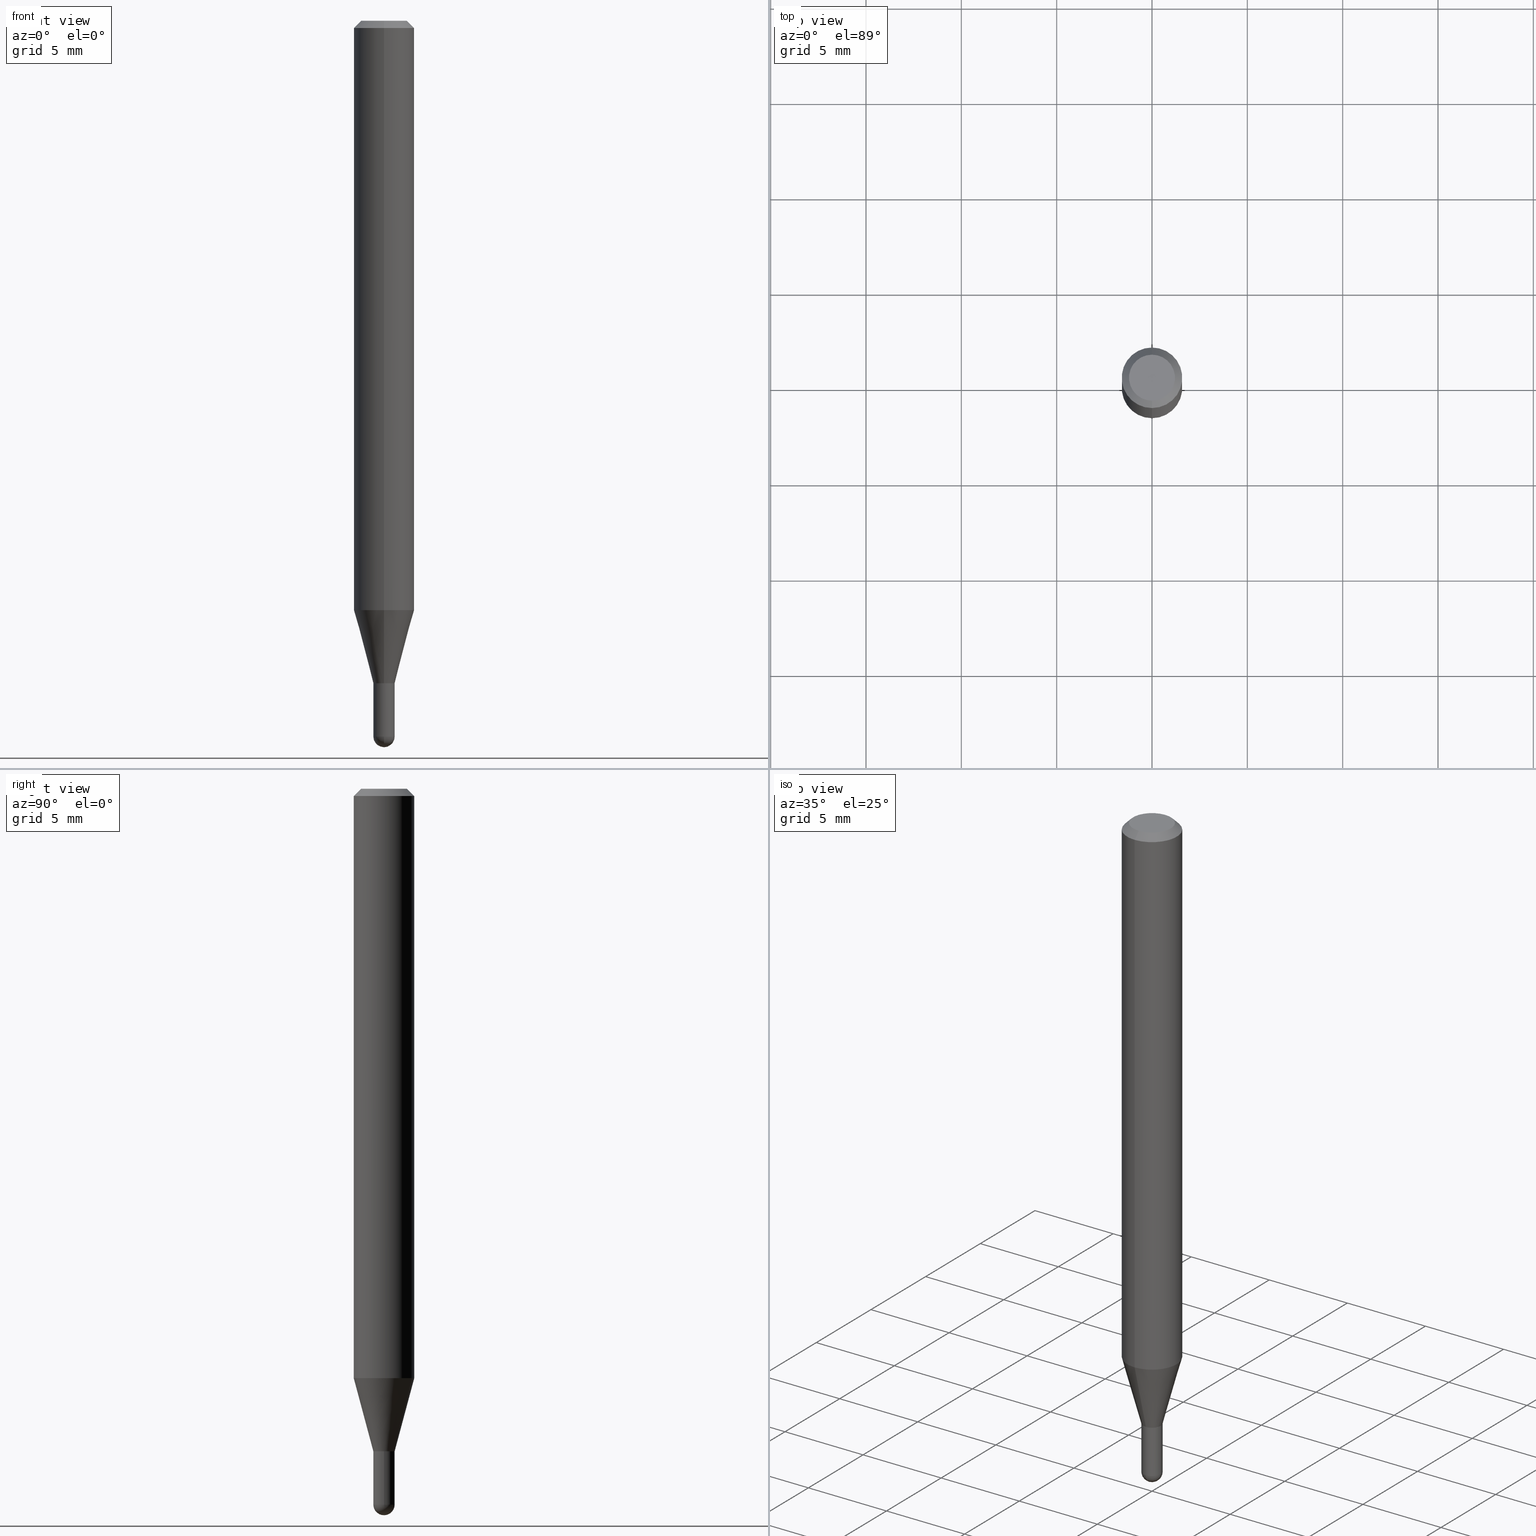
[diagram: canonical four-view strip — front | top / right | iso, engineering-drawing reading convention]
A machine part, canonical four-view strip (front | top / right | iso — engineering-drawing reading convention). The complete STEP part file that produces these views, byte-faithful:
ISO-10303-21;
HEADER;
FILE_DESCRIPTION (( 'STEP AP203' ),
    '1' );
FILE_NAME ('04422.STEP',
    '2024-03-08T19:22:46',
    ( '' ),
    ( '' ),
    'SwSTEP 2.0',
    'SolidWorks 2023',
    '' );
FILE_SCHEMA (( 'CONFIG_CONTROL_DESIGN' ));
ENDSEC;

DATA;
#1 = APPROVAL_PERSON_ORGANIZATION ( #148, #118, #382 ) ;
#2 = ORIENTED_EDGE ( 'NONE', *, *, #417, .T. ) ;
#3 = CARTESIAN_POINT ( 'NONE',  ( 3.614402895541633401E-29, -5.160409418810170442E-15, -1.478000000000000425 ) ) ;
#4 = LINE ( 'NONE', #162, #342 ) ;
#5 = DIRECTION ( 'NONE',  ( 1.000000000000000000, -6.982962677686245411E-15, 0.000000000000000000 ) ) ;
#6 = EDGE_CURVE ( 'NONE', #166, #127, #51, .T. ) ;
#7 = DIRECTION ( 'NONE',  ( -2.445468129083076640E-29, 3.491482308491833698E-15, 1.000000000000000000 ) ) ;
#8 = FACE_OUTER_BOUND ( 'NONE', #392, .T. ) ;
#9 = CONICAL_SURFACE ( 'NONE', #281, 0.02199999999999964831, 0.2617993877991576235 ) ;
#10 = VERTEX_POINT ( 'NONE', #451 ) ;
#11 = VERTEX_POINT ( 'NONE', #209 ) ;
#12 = ORIENTED_EDGE ( 'NONE', *, *, #270, .T. ) ;
#13 =( LENGTH_UNIT ( ) NAMED_UNIT ( * ) SI_UNIT ( $, .METRE. ) );
#14 = EDGE_CURVE ( 'NONE', #238, #482, #279, .T. ) ;
#15 = APPLICATION_CONTEXT ( 'configuration controlled 3d designs of mechanical parts and assemblies' ) ;
#16 = CARTESIAN_POINT ( 'NONE',  ( 3.002043058586727691E-16, 0.02199999999999487088, -1.368000000000000105 ) ) ;
#17 = LOCAL_TIME ( 14, 22, 46.00000000000000000, #262 ) ;
#18 = PLANE ( 'NONE',  #345 ) ;
#19 = EDGE_CURVE ( 'NONE', #183, #193, #4, .T. ) ;
#20 = PLANE ( 'NONE',  #495 ) ;
#21 = FACE_OUTER_BOUND ( 'NONE', #147, .T. ) ;
#22 = DIRECTION ( 'NONE',  ( -6.982962677686266711E-15, -1.000000000000000000, 0.000000000000000000 ) ) ;
#23 = DATE_AND_TIME ( #334, #330 ) ;
#24 = CIRCLE ( 'NONE', #320, 0.06250000000000000000 ) ;
#25 = AXIS2_PLACEMENT_3D ( 'NONE', #184, #416, #498 ) ;
#26 = DATE_AND_TIME ( #300, #321 ) ;
#27 = VERTEX_POINT ( 'NONE', #317 ) ;
#28 = COORDINATED_UNIVERSAL_TIME_OFFSET ( 5, 0, .BEHIND. ) ;
#29 = CARTESIAN_POINT ( 'NONE',  ( 0.000000000000000000, 0.000000000000000000, 0.000000000000000000 ) ) ;
#30 = ORIENTED_EDGE ( 'NONE', *, *, #178, .F. ) ;
#31 = AXIS2_PLACEMENT_3D ( 'NONE', #243, #433, #44 ) ;
#32 = CIRCLE ( 'NONE', #335, 0.02199999999999996403 ) ;
#33 = FACE_OUTER_BOUND ( 'NONE', #506, .T. ) ;
#34 = EDGE_CURVE ( 'NONE', #288, #238, #476, .T. ) ;
#35 = VERTEX_POINT ( 'NONE', #280 ) ;
#36 = LINE ( 'NONE', #201, #155 ) ;
#37 = ORIENTED_EDGE ( 'NONE', *, *, #496, .T. ) ;
#38 = EDGE_CURVE ( 'NONE', #323, #432, #480, .T. ) ;
#39 = DIRECTION ( 'NONE',  ( -6.982962677686265133E-15, -1.000000000000000000, 3.491482308491834092E-15 ) ) ;
#40 = VERTEX_POINT ( 'NONE', #444 ) ;
#41 = CIRCLE ( 'NONE', #289, 0.06250000000000000000 ) ;
#42 = CARTESIAN_POINT ( 'NONE',  ( 2.975772642691505504E-29, -4.248617028571555662E-15, -1.216851942293464051 ) ) ;
#43 = ORIENTED_EDGE ( 'NONE', *, *, #316, .T. ) ;
#44 = DIRECTION ( 'NONE',  ( 6.982962677686265922E-15, 1.000000000000000000, -3.483106191921935554E-15 ) ) ;
#45 = ORIENTED_EDGE ( 'NONE', *, *, #297, .F. ) ;
#46 = DIRECTION ( 'NONE',  ( -2.445468806185136597E-29, 3.491481338843145583E-15, 1.000000000000000000 ) ) ;
#47 = DIRECTION ( 'NONE',  ( -2.445468806185136597E-29, 3.491481338843145583E-15, 1.000000000000000000 ) ) ;
#48 = DIRECTION ( 'NONE',  ( -1.000000000000000000, 6.982962677686265922E-15, -4.876176775795935793E-29 ) ) ;
#49 = EDGE_LOOP ( 'NONE', ( #472, #509, #500, #314 ) ) ;
#50 = CARTESIAN_POINT ( 'NONE',  ( 3.612521529705438074E-29, -5.163103641768293997E-15, -1.478000000000000203 ) ) ;
#51 = LINE ( 'NONE', #292, #83 ) ;
#52 = DIRECTION ( 'NONE',  ( -6.982962677686265133E-15, -1.000000000000000000, 0.000000000000000000 ) ) ;
#53 = DIRECTION ( 'NONE',  ( -2.445468129083076640E-29, 3.491482308491833698E-15, 1.000000000000000000 ) ) ;
#54 = CIRCLE ( 'NONE', #205, 0.02199999999999999872 ) ;
#55 = DIRECTION ( 'NONE',  ( -6.982962677686265922E-15, -1.000000000000000000, 3.491482308491833304E-15 ) ) ;
#56 = LOCAL_TIME ( 14, 22, 46.00000000000000000, #100 ) ;
#57 = CARTESIAN_POINT ( 'NONE',  ( -1.536251789090624606E-16, -0.02200000000000449513, -1.367500000000000160 ) ) ;
#58 = DIRECTION ( 'NONE',  ( -2.445468129083076640E-29, 3.491482308491833698E-15, 1.000000000000000000 ) ) ;
#59 = APPROVAL_DATE_TIME ( #259, #454 ) ;
#60 = PRODUCT_RELATED_PRODUCT_CATEGORY ( 'detail', '', ( #158 ) ) ;
#61 = PERSON_AND_ORGANIZATION_ROLE ( 'creator' ) ;
#62 = AXIS2_PLACEMENT_3D ( 'NONE', #229, #190, #144 ) ;
#63 = CC_DESIGN_APPROVAL ( #454, ( #125 ) ) ;
#64 = EDGE_CURVE ( 'NONE', #323, #40, #354, .T. ) ;
#65 = PERSON_AND_ORGANIZATION ( #421, #264 ) ;
#66 = CARTESIAN_POINT ( 'NONE',  ( 3.612521529705438074E-29, -5.163103641768293997E-15, -1.478000000000000203 ) ) ;
#67 = EDGE_LOOP ( 'NONE', ( #325, #195, #277, #30 ) ) ;
#68 = DIRECTION ( 'NONE',  ( 4.937700262164548042E-15, 0.7071067811865451302, -0.7071067811865499042 ) ) ;
#69 = VERTEX_POINT ( 'NONE', #411 ) ;
#70 = CARTESIAN_POINT ( 'NONE',  ( 3.668202193624631670E-31, -5.237223462737773572E-17, -0.01500000000000006710 ) ) ;
#71 = ORIENTED_EDGE ( 'NONE', *, *, #34, .F. ) ;
#72 = DIRECTION ( 'NONE',  ( -6.982962677686265922E-15, -1.000000000000000000, 4.370956789862821150E-15 ) ) ;
#73 = ORIENTED_EDGE ( 'NONE', *, *, #368, .T. ) ;
#74 = CARTESIAN_POINT ( 'NONE',  ( 3.345401326861266963E-29, -4.776346471537423880E-15, -1.368000000000000105 ) ) ;
#75 = EDGE_LOOP ( 'NONE', ( #152, #134, #327, #441, #249 ) ) ;
#76 = LINE ( 'NONE', #475, #428 ) ;
#77 = ORIENTED_EDGE ( 'NONE', *, *, #182, .F. ) ;
#78 = CYLINDRICAL_SURFACE ( 'NONE', #301, 0.02199999999999964831 ) ;
#79 = CARTESIAN_POINT ( 'NONE',  ( 3.614402895541633401E-29, -5.160409418810170442E-15, -1.478000000000000425 ) ) ;
#80 = CARTESIAN_POINT ( 'NONE',  ( 3.345400400585649103E-29, -4.776347798016828139E-15, -1.368000000000000105 ) ) ;
#81 = ORIENTED_EDGE ( 'NONE', *, *, #419, .T. ) ;
#82 = SPHERICAL_SURFACE ( 'NONE', #85, 0.02199999999999996403 ) ;
#83 = VECTOR ( 'NONE', #363, 39.37007874015748854 ) ;
#84 = CIRCLE ( 'NONE', #247, 0.06250000000000000000 ) ;
#85 = AXIS2_PLACEMENT_3D ( 'NONE', #50, #208, #286 ) ;
#86 = PRODUCT_DEFINITION ( 'UNKNOWN', '', #290, #88 ) ;
#87 = EDGE_LOOP ( 'NONE', ( #202, #437, #131, #398 ) ) ;
#88 = DESIGN_CONTEXT ( 'detailed design', #15, 'design' ) ;
#89 = CARTESIAN_POINT ( 'NONE',  ( 4.440892098500921985E-16, 0.06249999999999573258, -1.216851942293464273 ) ) ;
#90 = FACE_OUTER_BOUND ( 'NONE', #75, .T. ) ;
#91 = DIRECTION ( 'NONE',  ( -6.982962677686265133E-15, -1.000000000000000000, 0.000000000000000000 ) ) ;
#92 = ADVANCED_FACE ( 'NONE', ( #138 ), #478, .T. ) ;
#93 = CARTESIAN_POINT ( 'NONE',  ( 1.536251789091312887E-16, 0.02199999999999522129, -1.368000000000000105 ) ) ;
#94 = AXIS2_PLACEMENT_3D ( 'NONE', #415, #58, #490 ) ;
#95 = CARTESIAN_POINT ( 'NONE',  ( 3.345400400585648543E-29, -4.776347798016827350E-15, -1.367999999999999661 ) ) ;
#96 = CC_DESIGN_APPROVAL ( #230, ( #290 ) ) ;
#97 = COORDINATED_UNIVERSAL_TIME_OFFSET ( 5, 0, .BEHIND. ) ;
#98 = CC_DESIGN_DATE_AND_TIME_ASSIGNMENT ( #23, #494, ( #125 ) ) ;
#99 = DATE_AND_TIME ( #225, #17 ) ;
#100 = COORDINATED_UNIVERSAL_TIME_OFFSET ( 5, 0, .BEHIND. ) ;
#101 = DIMENSIONAL_EXPONENTS ( 1.000000000000000000, 0.000000000000000000, 0.000000000000000000, 0.000000000000000000, 0.000000000000000000, 0.000000000000000000, 0.000000000000000000 ) ;
#102 = CIRCLE ( 'NONE', #171, 0.02199999999999999872 ) ;
#103 = ADVANCED_FACE ( 'NONE', ( #33 ), #20, .F. ) ;
#104 = VECTOR ( 'NONE', #210, 39.37007874015748143 ) ;
#105 = APPLICATION_PROTOCOL_DEFINITION ( 'international standard', 'config_control_design', 1994, #139 ) ;
#106 = CARTESIAN_POINT ( 'NONE',  ( -1.501336975702212530E-16, -0.02150000000000477224, -1.367999999999999661 ) ) ;
#107 = ORIENTED_EDGE ( 'NONE', *, *, #256, .F. ) ;
#108 = APPROVAL_DATE_TIME ( #462, #230 ) ;
#109 = DIRECTION ( 'NONE',  ( 1.000000000000000000, -6.982962677686265922E-15, 4.883557194083112901E-29 ) ) ;
#110 = EDGE_LOOP ( 'NONE', ( #446, #358, #43, #487, #425 ) ) ;
#111 = EDGE_CURVE ( 'NONE', #170, #10, #404, .T. ) ;
#112 = CARTESIAN_POINT ( 'NONE',  ( 3.345401326861266963E-29, -4.776346471537423880E-15, -1.368000000000000105 ) ) ;
#113 = EDGE_LOOP ( 'NONE', ( #309, #381, #77, #107 ) ) ;
#114 = VECTOR ( 'NONE', #124, 39.37007874015748143 ) ;
#115 = AXIS2_PLACEMENT_3D ( 'NONE', #79, #47, #265 ) ;
#116 = AXIS2_PLACEMENT_3D ( 'NONE', #3, #157, #324 ) ;
#117 = FACE_OUTER_BOUND ( 'NONE', #110, .T. ) ;
#118 = APPROVAL ( #422, 'UNSPECIFIED' ) ;
#119 = ORIENTED_EDGE ( 'NONE', *, *, #6, .F. ) ;
#120 = CARTESIAN_POINT ( 'NONE',  ( 3.612521529705438074E-29, -5.163103641768293997E-15, -1.478000000000000203 ) ) ;
#121 = ADVANCED_FACE ( 'NONE', ( #348 ), #505, .T. ) ;
#122 = ORIENTED_EDGE ( 'NONE', *, *, #163, .F. ) ;
#123 = CARTESIAN_POINT ( 'NONE',  ( 3.614402895541633401E-29, -5.160409418810170442E-15, -1.478000000000000425 ) ) ;
#124 = DIRECTION ( 'NONE',  ( -4.851104656540964275E-15, -0.7071067811865500152, -0.7071067811865450192 ) ) ;
#125 = SECURITY_CLASSIFICATION ( '', '', #418 ) ;
#126 = DIRECTION ( 'NONE',  ( -2.445468806185136597E-29, 3.491481338843145583E-15, 1.000000000000000000 ) ) ;
#127 = VERTEX_POINT ( 'NONE', #89 ) ;
#128 = DIRECTION ( 'NONE',  ( -2.445468129083076640E-29, 3.491482308491833304E-15, 1.000000000000000000 ) ) ;
#129 = ORIENTED_EDGE ( 'NONE', *, *, #470, .F. ) ;
#130 = DIRECTION ( 'NONE',  ( -2.445468129083076640E-29, 3.491482308491833304E-15, 1.000000000000000000 ) ) ;
#131 = ORIENTED_EDGE ( 'NONE', *, *, #14, .F. ) ;
#132 = FACE_OUTER_BOUND ( 'NONE', #484, .T. ) ;
#133 = AXIS2_PLACEMENT_3D ( 'NONE', #212, #373, #455 ) ;
#134 = ORIENTED_EDGE ( 'NONE', *, *, #38, .T. ) ;
#135 = DIRECTION ( 'NONE',  ( -2.445468129083076640E-29, 3.491482308491833698E-15, 1.000000000000000000 ) ) ;
#136 = ADVANCED_FACE ( 'NONE', ( #492 ), #151, .T. ) ;
#137 = DIRECTION ( 'NONE',  ( -2.445468129083076640E-29, 3.491482308491833698E-15, 1.000000000000000000 ) ) ;
#138 = FACE_OUTER_BOUND ( 'NONE', #113, .T. ) ;
#139 = APPLICATION_CONTEXT ( 'configuration controlled 3d designs of mechanical parts and assemblies' ) ;
#140 = APPROVAL_STATUS ( 'not_yet_approved' ) ;
#141 = CONICAL_SURFACE ( 'NONE', #222, 0.02149999999999999481, 0.7853981633974739252 ) ;
#142 = LOCAL_TIME ( 14, 22, 46.00000000000000000, #97 ) ;
#143 = PERSON_AND_ORGANIZATION ( #421, #264 ) ;
#144 = DIRECTION ( 'NONE',  ( -6.982962677686265133E-15, -1.000000000000000000, 0.000000000000000000 ) ) ;
#145 = CONICAL_SURFACE ( 'NONE', #440, 0.06250000000000000000, 0.7853981633974483900 ) ;
#146 = AXIS2_PLACEMENT_3D ( 'NONE', #80, #137, #452 ) ;
#147 = EDGE_LOOP ( 'NONE', ( #81, #12 ) ) ;
#148 = PERSON_AND_ORGANIZATION ( #421, #264 ) ;
#149 = CARTESIAN_POINT ( 'NONE',  ( 1.601786221884812409E-45, -2.286927475842318406E-31, -6.550018799408352352E-17 ) ) ;
#150 = VERTEX_POINT ( 'NONE', #308 ) ;
#151 = SPHERICAL_SURFACE ( 'NONE', #449, 0.02199999999999996403 ) ;
#152 = ORIENTED_EDGE ( 'NONE', *, *, #423, .T. ) ;
#153 = DIRECTION ( 'NONE',  ( 1.000000000000000000, -6.982962677686245411E-15, 0.000000000000000000 ) ) ;
#154 = ORIENTED_EDGE ( 'NONE', *, *, #182, .T. ) ;
#155 = VECTOR ( 'NONE', #397, 39.37007874015748143 ) ;
#156 = CARTESIAN_POINT ( 'NONE',  ( 3.345400400585648543E-29, -4.776347798016827350E-15, -1.367999999999999661 ) ) ;
#157 = DIRECTION ( 'NONE',  ( -2.445468806185136597E-29, 3.491481338843145583E-15, 1.000000000000000000 ) ) ;
#158 = PRODUCT ( '04422', '04422', '', ( #338 ) ) ;
#159 = EDGE_CURVE ( 'NONE', #288, #150, #177, .T. ) ;
#160 = DIRECTION ( 'NONE',  ( -1.807323732225379838E-15, -0.2588190451025252914, 0.9659258262890670910 ) ) ;
#161 = DIRECTION ( 'NONE',  ( -2.445468806185136597E-29, 3.491481338843145583E-15, 1.000000000000000000 ) ) ;
#162 = CARTESIAN_POINT ( 'NONE',  ( -1.536251789090619183E-16, -0.02200000000000442227, -1.368000000000000105 ) ) ;
#163 = EDGE_CURVE ( 'NONE', #27, #427, #420, .T. ) ;
#164 = AXIS2_PLACEMENT_3D ( 'NONE', #29, #185, #55 ) ;
#165 = CARTESIAN_POINT ( 'NONE',  ( 3.668202193624631670E-31, -5.237223462737773572E-17, -0.01500000000000006710 ) ) ;
#166 = VERTEX_POINT ( 'NONE', #16 ) ;
#167 = EDGE_CURVE ( 'NONE', #150, #288, #196, .T. ) ;
#168 = LINE ( 'NONE', #293, #104 ) ;
#169 = ORIENTED_EDGE ( 'NONE', *, *, #368, .F. ) ;
#170 = VERTEX_POINT ( 'NONE', #331 ) ;
#171 = AXIS2_PLACEMENT_3D ( 'NONE', #351, #46, #5 ) ;
#172 = DIRECTION ( 'NONE',  ( -6.982962677686266711E-15, -1.000000000000000000, 3.491482308491833698E-15 ) ) ;
#173 = DIRECTION ( 'NONE',  ( -1.000000000000000000, 6.982962677686265922E-15, -4.883557194083112340E-29 ) ) ;
#174 = CARTESIAN_POINT ( 'NONE',  ( 3.345400400585649103E-29, -4.776347798016828139E-15, -1.368000000000000105 ) ) ;
#175 = APPROVAL_ROLE ( '' ) ;
#176 = PERSON_AND_ORGANIZATION ( #421, #264 ) ;
#177 = CIRCLE ( 'NONE', #439, 0.04749999999999999362 ) ;
#178 = EDGE_CURVE ( 'NONE', #150, #482, #294, .T. ) ;
#179 = PERSON_AND_ORGANIZATION_ROLE ( 'design_owner' ) ;
#180 = APPROVAL_DATE_TIME ( #99, #118 ) ;
#181 = CARTESIAN_POINT ( 'NONE',  ( -4.364351673553912750E-16, -0.06250000000000005551, -0.01499999999999984852 ) ) ;
#182 = EDGE_CURVE ( 'NONE', #427, #27, #232, .T. ) ;
#183 = VERTEX_POINT ( 'NONE', #453 ) ;
#184 = CARTESIAN_POINT ( 'NONE',  ( 0.000000000000000000, 0.000000000000000000, 0.000000000000000000 ) ) ;
#185 = DIRECTION ( 'NONE',  ( -2.445468129083076640E-29, 3.491482308491833698E-15, 1.000000000000000000 ) ) ;
#186 = AXIS2_PLACEMENT_3D ( 'NONE', #396, #7, #370 ) ;
#187 = EDGE_CURVE ( 'NONE', #183, #166, #502, .T. ) ;
#188 = VECTOR ( 'NONE', #128, 39.37007874015748143 ) ;
#189 = ORIENTED_EDGE ( 'NONE', *, *, #304, .T. ) ;
#190 = DIRECTION ( 'NONE',  ( -2.445468129083076640E-29, 3.491482308491833698E-15, 1.000000000000000000 ) ) ;
#191 = EDGE_LOOP ( 'NONE', ( #394, #227, #312, #246 ) ) ;
#192 = DIRECTION ( 'NONE',  ( 1.000000000000000000, -6.982962677686245411E-15, 0.000000000000000000 ) ) ;
#193 = VERTEX_POINT ( 'NONE', #302 ) ;
#194 = DIRECTION ( 'NONE',  ( -2.445468806185136597E-29, 3.491481338843145583E-15, 1.000000000000000000 ) ) ;
#195 = ORIENTED_EDGE ( 'NONE', *, *, #34, .T. ) ;
#196 = CIRCLE ( 'NONE', #263, 0.04749999999999999362 ) ;
#197 = APPROVAL_PERSON_ORGANIZATION ( #261, #230, #175 ) ;
#198 = DIRECTION ( 'NONE',  ( -2.445468806185136597E-29, 3.491481338843145583E-15, 1.000000000000000000 ) ) ;
#199 = ADVANCED_BREP_SHAPE_REPRESENTATION ( '04422', ( #385, #380, #25 ), #303 ) ;
#200 = ORIENTED_EDGE ( 'NONE', *, *, #214, .T. ) ;
#201 = CARTESIAN_POINT ( 'NONE',  ( 0.02199999999999999872, -1.536251789090978361E-16, 1.072758890675105930E-30 ) ) ;
#202 = ORIENTED_EDGE ( 'NONE', *, *, #251, .T. ) ;
#203 = CARTESIAN_POINT ( 'NONE',  ( 0.000000000000000000, 0.000000000000000000, 0.000000000000000000 ) ) ;
#204 = ORIENTED_EDGE ( 'NONE', *, *, #187, .F. ) ;
#205 = AXIS2_PLACEMENT_3D ( 'NONE', #123, #126, #192 ) ;
#206 = CARTESIAN_POINT ( 'NONE',  ( 4.440892098500924943E-16, 0.06249999999999993755, -0.01500000000000028394 ) ) ;
#207 = ORIENTED_EDGE ( 'NONE', *, *, #434, .F. ) ;
#208 = DIRECTION ( 'NONE',  ( 1.000000000000000000, -6.982962677686265922E-15, 4.883557194083112901E-29 ) ) ;
#209 = CARTESIAN_POINT ( 'NONE',  ( 1.563194018672579989E-16, 0.02199999999999481537, -1.478000000000000425 ) ) ;
#210 = DIRECTION ( 'NONE',  ( -2.445468129083076640E-29, 3.491482308491833304E-15, 1.000000000000000000 ) ) ;
#211 = DIRECTION ( 'NONE',  ( -6.982962677686265922E-15, -1.000000000000000000, 0.000000000000000000 ) ) ;
#212 = CARTESIAN_POINT ( 'NONE',  ( 0.000000000000000000, 0.000000000000000000, 0.000000000000000000 ) ) ;
#213 = CONICAL_SURFACE ( 'NONE', #31, 0.06250000000000000000, 0.7853981633974483900 ) ;
#214 = EDGE_CURVE ( 'NONE', #166, #183, #255, .T. ) ;
#215 = APPROVAL_PERSON_ORGANIZATION ( #176, #454, #458 ) ;
#216 = FACE_OUTER_BOUND ( 'NONE', #384, .T. ) ;
#217 = DIRECTION ( 'NONE',  ( -2.445468806185136597E-29, 3.491481338843145583E-15, 1.000000000000000000 ) ) ;
#218 = DIRECTION ( 'NONE',  ( -2.445468129083076640E-29, 3.491482308491833698E-15, 1.000000000000000000 ) ) ;
#219 = PERSON_AND_ORGANIZATION_ROLE ( 'classification_officer' ) ;
#220 = ADVANCED_FACE ( 'NONE', ( #216 ), #9, .T. ) ;
#221 = PERSON_AND_ORGANIZATION_ROLE ( 'design_supplier' ) ;
#222 = AXIS2_PLACEMENT_3D ( 'NONE', #395, #473, #477 ) ;
#223 = AXIS2_PLACEMENT_3D ( 'NONE', #93, #407, #48 ) ;
#224 = SHAPE_DEFINITION_REPRESENTATION ( #359, #199 ) ;
#225 = CALENDAR_DATE ( 2024, 8, 3 ) ;
#226 = DIRECTION ( 'NONE',  ( -2.445468129083076640E-29, 3.491482308491833698E-15, 1.000000000000000000 ) ) ;
#227 = ORIENTED_EDGE ( 'NONE', *, *, #6, .T. ) ;
#228 = CALENDAR_DATE ( 2024, 8, 3 ) ;
#229 = CARTESIAN_POINT ( 'NONE',  ( 3.344177666521107769E-29, -4.774602056862582978E-15, -1.367500000000000160 ) ) ;
#230 = APPROVAL ( #306, 'UNSPECIFIED' ) ;
#231 = CLOSED_SHELL ( 'NONE', ( #442, #445, #485, #136, #409 ) ) ;
#232 = CIRCLE ( 'NONE', #62, 0.02199999999999964831 ) ;
#233 = FACE_OUTER_BOUND ( 'NONE', #275, .T. ) ;
#234 = ORIENTED_EDGE ( 'NONE', *, *, #337, .T. ) ;
#235 = CARTESIAN_POINT ( 'NONE',  ( 0.000000000000000000, 0.000000000000000000, 0.000000000000000000 ) ) ;
#236 = ORIENTED_EDGE ( 'NONE', *, *, #389, .F. ) ;
#237 = DIRECTION ( 'NONE',  ( 1.000000000000000000, -6.982962677686245411E-15, 0.000000000000000000 ) ) ;
#238 = VERTEX_POINT ( 'NONE', #181 ) ;
#239 = CIRCLE ( 'NONE', #328, 0.02199999999999996403 ) ;
#240 = CONICAL_SURFACE ( 'NONE', #146, 0.02199999999999964831, 0.2617993877991576235 ) ;
#241 = DIRECTION ( 'NONE',  ( -2.445468129083076640E-29, 3.491482308491833304E-15, 1.000000000000000000 ) ) ;
#242 = VERTEX_POINT ( 'NONE', #374 ) ;
#243 = CARTESIAN_POINT ( 'NONE',  ( 3.668202193624631670E-31, -5.237223462737773572E-17, -0.01500000000000006710 ) ) ;
#244 = ORIENTED_EDGE ( 'NONE', *, *, #159, .T. ) ;
#245 = CYLINDRICAL_SURFACE ( 'NONE', #431, 0.02199999999999999872 ) ;
#246 = ORIENTED_EDGE ( 'NONE', *, *, #19, .F. ) ;
#247 = AXIS2_PLACEMENT_3D ( 'NONE', #70, #357, #362 ) ;
#248 =( CONVERSION_BASED_UNIT ( 'INCH', #369 ) LENGTH_UNIT ( ) NAMED_UNIT ( #101 ) );
#249 = ORIENTED_EDGE ( 'NONE', *, *, #389, .T. ) ;
#250 = DIRECTION ( 'NONE',  ( -2.445468129083076640E-29, 3.491482308491833698E-15, 1.000000000000000000 ) ) ;
#251 = EDGE_CURVE ( 'NONE', #193, #127, #24, .T. ) ;
#252 = CARTESIAN_POINT ( 'NONE',  ( 3.316907271900976096E-16, 0.04749999999999999362, -1.985955036504038294E-16 ) ) ;
#253 = CARTESIAN_POINT ( 'NONE',  ( 3.345400400585649103E-29, -4.776347798016828139E-15, -1.368000000000000105 ) ) ;
#254 = DIRECTION ( 'NONE',  ( 1.000000000000000000, -6.982962677686265922E-15, 4.876176775795936353E-29 ) ) ;
#255 = CIRCLE ( 'NONE', #486, 0.02199999999999964831 ) ;
#256 = EDGE_CURVE ( 'NONE', #170, #427, #377, .T. ) ;
#257 = CIRCLE ( 'NONE', #116, 0.02199999999999999872 ) ;
#258 = CARTESIAN_POINT ( 'NONE',  ( 4.364351673553919652E-16, 0.06249999999999995143, -0.01500000000000028394 ) ) ;
#259 = DATE_AND_TIME ( #298, #142 ) ;
#260 = ADVANCED_FACE ( 'NONE', ( #282 ), #213, .T. ) ;
#261 = PERSON_AND_ORGANIZATION ( #421, #264 ) ;
#262 = COORDINATED_UNIVERSAL_TIME_OFFSET ( 5, 0, .BEHIND. ) ;
#263 = AXIS2_PLACEMENT_3D ( 'NONE', #149, #388, #172 ) ;
#264 = ORGANIZATION ( 'UNSPECIFIED', 'UNSPECIFIED', '' ) ;
#265 = DIRECTION ( 'NONE',  ( 1.000000000000000000, -6.982962677686245411E-15, 0.000000000000000000 ) ) ;
#266 = ORIENTED_EDGE ( 'NONE', *, *, #417, .F. ) ;
#267 = PERSON_AND_ORGANIZATION ( #421, #264 ) ;
#268 = CARTESIAN_POINT ( 'NONE',  ( 3.344177666521107769E-29, -4.774602056862582978E-15, -1.367500000000000160 ) ) ;
#269 = DIRECTION ( 'NONE',  ( 5.024295867788190974E-15, 0.7071067811865681119, 0.7071067811865270336 ) ) ;
#270 = EDGE_CURVE ( 'NONE', #432, #242, #299, .T. ) ;
#271 = AXIS2_PLACEMENT_3D ( 'NONE', #112, #161, #153 ) ;
#272 = EDGE_LOOP ( 'NONE', ( #45, #73, #37, #349 ) ) ;
#273 = CYLINDRICAL_SURFACE ( 'NONE', #329, 0.02199999999999999872 ) ;
#274 = CC_DESIGN_PERSON_AND_ORGANIZATION_ASSIGNMENT ( #65, #179, ( #158 ) ) ;
#275 = EDGE_LOOP ( 'NONE', ( #341, #2, #390, #122 ) ) ;
#276 = CARTESIAN_POINT ( 'NONE',  ( -3.773273898774340269E-16, -0.04749999999999999362, 1.003452216592785687E-16 ) ) ;
#277 = ORIENTED_EDGE ( 'NONE', *, *, #14, .T. ) ;
#278 = CARTESIAN_POINT ( 'NONE',  ( 0.000000000000000000, 0.000000000000000000, 0.000000000000000000 ) ) ;
#279 = CIRCLE ( 'NONE', #186, 0.06250000000000000000 ) ;
#280 = CARTESIAN_POINT ( 'NONE',  ( 0.02199999999999999872, -5.122003124082894208E-15, -1.478000000000000425 ) ) ;
#281 = AXIS2_PLACEMENT_3D ( 'NONE', #253, #226, #344 ) ;
#282 = FACE_OUTER_BOUND ( 'NONE', #67, .T. ) ;
#283 = CARTESIAN_POINT ( 'NONE',  ( -0.02199999999999999872, 1.563194018672220318E-16, -1.082165719856079240E-30 ) ) ;
#284 = DIRECTION ( 'NONE',  ( 6.982962677686265922E-15, 1.000000000000000000, -3.491482308491833304E-15 ) ) ;
#285 = ORIENTED_EDGE ( 'NONE', *, *, #304, .F. ) ;
#286 = DIRECTION ( 'NONE',  ( -6.982962677686265922E-15, -1.000000000000000000, 0.000000000000000000 ) ) ;
#287 = ADVANCED_FACE ( 'NONE', ( #233 ), #141, .T. ) ;
#288 = VERTEX_POINT ( 'NONE', #276 ) ;
#289 = AXIS2_PLACEMENT_3D ( 'NONE', #42, #443, #72 ) ;
#290 = PRODUCT_DEFINITION_FORMATION_WITH_SPECIFIED_SOURCE ( 'ANY', '', #158, .NOT_KNOWN. ) ;
#291 =( NAMED_UNIT ( * ) SI_UNIT ( $, .STERADIAN. ) SOLID_ANGLE_UNIT ( ) );
#292 = CARTESIAN_POINT ( 'NONE',  ( 1.563194018672529700E-16, 0.02199999999999487088, -1.368000000000000105 ) ) ;
#293 = CARTESIAN_POINT ( 'NONE',  ( 1.563194018672195173E-16, 0.02199999999999964831, -7.681261078681911941E-17 ) ) ;
#294 = LINE ( 'NONE', #258, #343 ) ;
#295 = FACE_OUTER_BOUND ( 'NONE', #272, .T. ) ;
#296 = CARTESIAN_POINT ( 'NONE',  ( 1.601786221884812409E-45, -2.286927475842318406E-31, -6.550018799408352352E-17 ) ) ;
#297 = EDGE_CURVE ( 'NONE', #127, #482, #391, .T. ) ;
#298 = CALENDAR_DATE ( 2024, 8, 3 ) ;
#299 = CIRCLE ( 'NONE', #271, 0.02199999999999999872 ) ;
#300 = CALENDAR_DATE ( 2024, 8, 3 ) ;
#301 = AXIS2_PLACEMENT_3D ( 'NONE', #203, #508, #39 ) ;
#302 = CARTESIAN_POINT ( 'NONE',  ( -4.364351673553619392E-16, -0.06250000000000427436, -1.216851942293464051 ) ) ;
#303 =( GEOMETRIC_REPRESENTATION_CONTEXT ( 3 ) GLOBAL_UNCERTAINTY_ASSIGNED_CONTEXT ( ( #340 ) ) GLOBAL_UNIT_ASSIGNED_CONTEXT ( ( #248, #326, #291 ) ) REPRESENTATION_CONTEXT ( 'NONE', 'WORKASPACE' ) );
#304 = EDGE_CURVE ( 'NONE', #69, #11, #239, .T. ) ;
#305 = ORIENTED_EDGE ( 'NONE', *, *, #423, .F. ) ;
#306 = APPROVAL_STATUS ( 'not_yet_approved' ) ;
#307 = DIRECTION ( 'NONE',  ( -6.982962677686266711E-15, -1.000000000000000000, 0.000000000000000000 ) ) ;
#308 = CARTESIAN_POINT ( 'NONE',  ( 3.840629472727447874E-16, 0.04749999999999999362, -2.313455976474456528E-16 ) ) ;
#309 = ORIENTED_EDGE ( 'NONE', *, *, #111, .T. ) ;
#310 = EDGE_CURVE ( 'NONE', #10, #27, #76, .T. ) ;
#311 = DIRECTION ( 'NONE',  ( 6.982962677686265922E-15, 1.000000000000000000, -3.483106191921935554E-15 ) ) ;
#312 = ORIENTED_EDGE ( 'NONE', *, *, #251, .F. ) ;
#313 = DIRECTION ( 'NONE',  ( -2.445468129083076640E-29, 3.491482308491833698E-15, 1.000000000000000000 ) ) ;
#314 = ORIENTED_EDGE ( 'NONE', *, *, #489, .F. ) ;
#315 = DIRECTION ( 'NONE',  ( 7.105427357601001070E-15, 1.000000000000000000, 0.000000000000000000 ) ) ;
#316 = EDGE_CURVE ( 'NONE', #40, #35, #54, .T. ) ;
#317 = CARTESIAN_POINT ( 'NONE',  ( 1.563194018672524030E-16, 0.02199999999999479802, -1.367500000000000160 ) ) ;
#318 = DIRECTION ( 'NONE',  ( 2.445468129083076640E-29, -3.491482308491833698E-15, -1.000000000000000000 ) ) ;
#319 = CARTESIAN_POINT ( 'NONE',  ( -4.287811248607203282E-16, -0.06250000000000005551, -0.01499999999999984852 ) ) ;
#320 = AXIS2_PLACEMENT_3D ( 'NONE', #333, #460, #456 ) ;
#321 = LOCAL_TIME ( 14, 22, 46.00000000000000000, #28 ) ;
#322 = CARTESIAN_POINT ( 'NONE',  ( -0.02199999999999999872, -4.812058543306574981E-15, -1.368000000000000105 ) ) ;
#323 = VERTEX_POINT ( 'NONE', #429 ) ;
#324 = DIRECTION ( 'NONE',  ( 1.000000000000000000, -6.982962677686245411E-15, 0.000000000000000000 ) ) ;
#325 = ORIENTED_EDGE ( 'NONE', *, *, #159, .F. ) ;
#326 =( NAMED_UNIT ( * ) PLANE_ANGLE_UNIT ( ) SI_UNIT ( $, .RADIAN. ) );
#327 = ORIENTED_EDGE ( 'NONE', *, *, #419, .F. ) ;
#328 = AXIS2_PLACEMENT_3D ( 'NONE', #120, #465, #315 ) ;
#329 = AXIS2_PLACEMENT_3D ( 'NONE', #235, #194, #353 ) ;
#330 = LOCAL_TIME ( 14, 22, 46.00000000000000000, #497 ) ;
#331 = CARTESIAN_POINT ( 'NONE',  ( -1.501336975702212530E-16, -0.02150000000000477224, -1.367999999999999661 ) ) ;
#332 = DIRECTION ( 'NONE',  ( 2.445468129083076640E-29, -3.491482308491833304E-15, -1.000000000000000000 ) ) ;
#333 = CARTESIAN_POINT ( 'NONE',  ( 2.975772642691505504E-29, -4.248617028571555662E-15, -1.216851942293464051 ) ) ;
#334 = CALENDAR_DATE ( 2024, 8, 3 ) ;
#335 = AXIS2_PLACEMENT_3D ( 'NONE', #375, #173, #52 ) ;
#336 = DATE_TIME_ROLE ( 'creation_date' ) ;
#337 = EDGE_CURVE ( 'NONE', #482, #238, #84, .T. ) ;
#338 = MECHANICAL_CONTEXT ( 'NONE', #139, 'mechanical' ) ;
#339 = DIRECTION ( 'NONE',  ( -2.445468129083076640E-29, 3.491482308491833304E-15, 1.000000000000000000 ) ) ;
#340 = UNCERTAINTY_MEASURE_WITH_UNIT (LENGTH_MEASURE( 1.000000000000000082E-05 ), #248, 'distance_accuracy_value', 'NONE');
#341 = ORIENTED_EDGE ( 'NONE', *, *, #310, .F. ) ;
#342 = VECTOR ( 'NONE', #160, 39.37007874015748143 ) ;
#343 = VECTOR ( 'NONE', #68, 39.37007874015748143 ) ;
#344 = DIRECTION ( 'NONE',  ( -6.982962677686265133E-15, -1.000000000000000000, 0.000000000000000000 ) ) ;
#345 = AXIS2_PLACEMENT_3D ( 'NONE', #252, #332, #284 ) ;
#346 = ADVANCED_FACE ( 'NONE', ( #438 ), #469, .F. ) ;
#347 = ORIENTED_EDGE ( 'NONE', *, *, #178, .T. ) ;
#348 = FACE_OUTER_BOUND ( 'NONE', #87, .T. ) ;
#349 = ORIENTED_EDGE ( 'NONE', *, *, #337, .F. ) ;
#350 = EDGE_CURVE ( 'NONE', #35, #242, #36, .T. ) ;
#351 = CARTESIAN_POINT ( 'NONE',  ( 3.614402895541633401E-29, -5.160409418810170442E-15, -1.478000000000000425 ) ) ;
#352 = CC_DESIGN_PERSON_AND_ORGANIZATION_ASSIGNMENT ( #267, #426, ( #290 ) ) ;
#353 = DIRECTION ( 'NONE',  ( 1.000000000000000000, -6.982962677686265922E-15, 4.876176775795936353E-29 ) ) ;
#354 = CIRCLE ( 'NONE', #115, 0.02199999999999999872 ) ;
#355 = CC_DESIGN_SECURITY_CLASSIFICATION ( #125, ( #290 ) ) ;
#356 = ORIENTED_EDGE ( 'NONE', *, *, #316, .F. ) ;
#357 = DIRECTION ( 'NONE',  ( -2.445468129083076640E-29, 3.491482308491833698E-15, 1.000000000000000000 ) ) ;
#358 = ORIENTED_EDGE ( 'NONE', *, *, #64, .T. ) ;
#359 = PRODUCT_DEFINITION_SHAPE ( 'NONE', 'NONE',  #86 ) ;
#360 = CARTESIAN_POINT ( 'NONE',  ( 4.440892098500625669E-16, 0.06250000000000000000, -2.182176442807395815E-16 ) ) ;
#361 = ORIENTED_EDGE ( 'NONE', *, *, #470, .T. ) ;
#362 = DIRECTION ( 'NONE',  ( -6.982962677686265922E-15, -1.000000000000000000, 3.483106191921935554E-15 ) ) ;
#363 = DIRECTION ( 'NONE',  ( 1.839019923739650408E-15, 0.2588190451025320082, 0.9659258262890650926 ) ) ;
#364 = AXIS2_PLACEMENT_3D ( 'NONE', #268, #499, #372 ) ;
#365 = AXIS2_PLACEMENT_3D ( 'NONE', #156, #313, #436 ) ;
#366 = LINE ( 'NONE', #414, #479 ) ;
#367 = EDGE_LOOP ( 'NONE', ( #207, #204, #504, #154 ) ) ;
#368 = EDGE_CURVE ( 'NONE', #127, #193, #41, .T. ) ;
#369 = LENGTH_MEASURE_WITH_UNIT ( LENGTH_MEASURE( 0.02539999999999999897 ), #13 );
#370 = DIRECTION ( 'NONE',  ( -6.982962677686265922E-15, -1.000000000000000000, 3.483106191921935554E-15 ) ) ;
#371 = FACE_OUTER_BOUND ( 'NONE', #466, .T. ) ;
#372 = DIRECTION ( 'NONE',  ( -6.982962677686265133E-15, -1.000000000000000000, 0.000000000000000000 ) ) ;
#373 = DIRECTION ( 'NONE',  ( -2.445468129083076640E-29, 3.491482308491833698E-15, 1.000000000000000000 ) ) ;
#374 = CARTESIAN_POINT ( 'NONE',  ( 0.02199999999999999872, -4.929971650446520927E-15, -1.368000000000000105 ) ) ;
#375 = CARTESIAN_POINT ( 'NONE',  ( 3.612521529705438074E-29, -5.163103641768293997E-15, -1.478000000000000203 ) ) ;
#376 = CC_DESIGN_PERSON_AND_ORGANIZATION_ASSIGNMENT ( #379, #219, ( #125 ) ) ;
#377 = LINE ( 'NONE', #106, #387 ) ;
#378 = APPLICATION_PROTOCOL_DEFINITION ( 'international standard', 'config_control_design', 1994, #15 ) ;
#379 = PERSON_AND_ORGANIZATION ( #421, #264 ) ;
#380 = MANIFOLD_SOLID_BREP ( 'Body-Move/Copy2[2]', #501 ) ;
#381 = ORIENTED_EDGE ( 'NONE', *, *, #310, .T. ) ;
#382 = APPROVAL_ROLE ( '' ) ;
#383 = CARTESIAN_POINT ( 'NONE',  ( 3.345400400585648543E-29, -4.776347798016827350E-15, -1.367999999999999661 ) ) ;
#384 = EDGE_LOOP ( 'NONE', ( #119, #200, #461, #169 ) ) ;
#385 = MANIFOLD_SOLID_BREP ( 'Body-Move/Copy2[1]', #231 ) ;
#386 = PERSON_AND_ORGANIZATION ( #421, #264 ) ;
#387 = VECTOR ( 'NONE', #503, 39.37007874015748143 ) ;
#388 = DIRECTION ( 'NONE',  ( -2.445468129083076640E-29, 3.491482308491833698E-15, 1.000000000000000000 ) ) ;
#389 = EDGE_CURVE ( 'NONE', #35, #11, #102, .T. ) ;
#390 = ORIENTED_EDGE ( 'NONE', *, *, #256, .T. ) ;
#391 = LINE ( 'NONE', #360, #468 ) ;
#392 = EDGE_LOOP ( 'NONE', ( #71, #474, #347, #234 ) ) ;
#393 = DIRECTION ( 'NONE',  ( -6.982962677686265133E-15, -1.000000000000000000, 3.491482308491834092E-15 ) ) ;
#394 = ORIENTED_EDGE ( 'NONE', *, *, #187, .T. ) ;
#395 = CARTESIAN_POINT ( 'NONE',  ( 3.345400400585648543E-29, -4.776347798016827350E-15, -1.367999999999999661 ) ) ;
#396 = CARTESIAN_POINT ( 'NONE',  ( 3.668202193624631670E-31, -5.237223462737773572E-17, -0.01500000000000006710 ) ) ;
#397 = DIRECTION ( 'NONE',  ( -2.445468806185136877E-29, 3.491481338843145188E-15, 1.000000000000000000 ) ) ;
#398 = ORIENTED_EDGE ( 'NONE', *, *, #496, .F. ) ;
#399 = FACE_OUTER_BOUND ( 'NONE', #367, .T. ) ;
#400 = ADVANCED_FACE ( 'NONE', ( #399 ), #78, .F. ) ;
#401 = DIRECTION ( 'NONE',  ( -2.445468806185136877E-29, 3.491481338843145188E-15, 1.000000000000000000 ) ) ;
#402 = ADVANCED_FACE ( 'NONE', ( #8 ), #145, .T. ) ;
#403 = ORIENTED_EDGE ( 'NONE', *, *, #111, .F. ) ;
#404 = CIRCLE ( 'NONE', #457, 0.02149999999999999481 ) ;
#405 = FACE_OUTER_BOUND ( 'NONE', #191, .T. ) ;
#406 = ORIENTED_EDGE ( 'NONE', *, *, #64, .F. ) ;
#407 = DIRECTION ( 'NONE',  ( 2.438088387897960049E-29, -3.491481338843145188E-15, -1.000000000000000000 ) ) ;
#408 = DIRECTION ( 'NONE',  ( -6.982962677686266711E-15, -1.000000000000000000, 3.491482308491833698E-15 ) ) ;
#409 = ADVANCED_FACE ( 'NONE', ( #117 ), #273, .T. ) ;
#410 = CARTESIAN_POINT ( 'NONE',  ( 0.000000000000000000, 0.000000000000000000, 0.000000000000000000 ) ) ;
#411 = CARTESIAN_POINT ( 'NONE',  ( 3.665381160523413305E-29, -5.241263342701905087E-15, -1.500000000000000222 ) ) ;
#412 = AXIS2_PLACEMENT_3D ( 'NONE', #95, #250, #307 ) ;
#413 = AXIS2_PLACEMENT_3D ( 'NONE', #74, #198, #237 ) ;
#414 = CARTESIAN_POINT ( 'NONE',  ( -1.536251789090953709E-16, -0.02199999999999964831, 7.681261078681911941E-17 ) ) ;
#415 = CARTESIAN_POINT ( 'NONE',  ( 3.345400400585649103E-29, -4.776347798016828139E-15, -1.368000000000000105 ) ) ;
#416 = DIRECTION ( 'NONE',  ( 0.000000000000000000, 0.000000000000000000, 1.000000000000000000 ) ) ;
#417 = EDGE_CURVE ( 'NONE', #10, #170, #459, .T. ) ;
#418 = SECURITY_CLASSIFICATION_LEVEL ( 'unclassified' ) ;
#419 = EDGE_CURVE ( 'NONE', #242, #432, #450, .T. ) ;
#420 = CIRCLE ( 'NONE', #364, 0.02199999999999964831 ) ;
#421 = PERSON ( 'UNSPECIFIED', 'UNSPECIFIED', 'UNSPECIFIED', ('UNSPECIFIED'), ('UNSPECIFIED'), ('UNSPECIFIED') ) ;
#422 = APPROVAL_STATUS ( 'not_yet_approved' ) ;
#423 = EDGE_CURVE ( 'NONE', #11, #323, #257, .T. ) ;
#424 = DIRECTION ( 'NONE',  ( -6.982962677686265922E-15, -1.000000000000000000, 3.491482308491833304E-15 ) ) ;
#425 = ORIENTED_EDGE ( 'NONE', *, *, #270, .F. ) ;
#426 = PERSON_AND_ORGANIZATION_ROLE ( 'creator' ) ;
#427 = VERTEX_POINT ( 'NONE', #57 ) ;
#428 = VECTOR ( 'NONE', #269, 39.37007874015748143 ) ;
#429 = CARTESIAN_POINT ( 'NONE',  ( -0.02199999999999999872, -4.812058543306574981E-15, -1.478000000000000425 ) ) ;
#430 = CC_DESIGN_PERSON_AND_ORGANIZATION_ASSIGNMENT ( #143, #61, ( #86 ) ) ;
#431 = AXIS2_PLACEMENT_3D ( 'NONE', #410, #217, #254 ) ;
#432 = VERTEX_POINT ( 'NONE', #322 ) ;
#433 = DIRECTION ( 'NONE',  ( 2.445468129083076640E-29, -3.491482308491833698E-15, -1.000000000000000000 ) ) ;
#434 = EDGE_CURVE ( 'NONE', #166, #27, #168, .T. ) ;
#435 = EDGE_LOOP ( 'NONE', ( #285, #361, #406, #305 ) ) ;
#436 = DIRECTION ( 'NONE',  ( -6.982962677686266711E-15, -1.000000000000000000, 0.000000000000000000 ) ) ;
#437 = ORIENTED_EDGE ( 'NONE', *, *, #297, .T. ) ;
#438 = FACE_OUTER_BOUND ( 'NONE', #49, .T. ) ;
#439 = AXIS2_PLACEMENT_3D ( 'NONE', #296, #218, #408 ) ;
#440 = AXIS2_PLACEMENT_3D ( 'NONE', #165, #318, #311 ) ;
#441 = ORIENTED_EDGE ( 'NONE', *, *, #350, .F. ) ;
#442 = ADVANCED_FACE ( 'NONE', ( #90 ), #245, .T. ) ;
#443 = DIRECTION ( 'NONE',  ( -2.445468129083076640E-29, 3.491482308491833698E-15, 1.000000000000000000 ) ) ;
#444 = CARTESIAN_POINT ( 'NONE',  ( -1.536251789090615978E-16, -0.02200000000000514391, -1.478000000000000425 ) ) ;
#445 = ADVANCED_FACE ( 'NONE', ( #371 ), #82, .T. ) ;
#446 = ORIENTED_EDGE ( 'NONE', *, *, #38, .F. ) ;
#447 = CC_DESIGN_DATE_AND_TIME_ASSIGNMENT ( #26, #336, ( #86 ) ) ;
#448 = ORIENTED_EDGE ( 'NONE', *, *, #167, .T. ) ;
#449 = AXIS2_PLACEMENT_3D ( 'NONE', #66, #109, #211 ) ;
#450 = CIRCLE ( 'NONE', #413, 0.02199999999999999872 ) ;
#451 = CARTESIAN_POINT ( 'NONE',  ( 1.545430450278539505E-16, 0.02149999999999522085, -1.367999999999999661 ) ) ;
#452 = DIRECTION ( 'NONE',  ( -6.982962677686265133E-15, -1.000000000000000000, 0.000000000000000000 ) ) ;
#453 = CARTESIAN_POINT ( 'NONE',  ( -1.536251789090619183E-16, -0.02200000000000442227, -1.368000000000000105 ) ) ;
#454 = APPROVAL ( #140, 'UNSPECIFIED' ) ;
#455 = DIRECTION ( 'NONE',  ( -6.982962677686265922E-15, -1.000000000000000000, 3.491482308491833304E-15 ) ) ;
#456 = DIRECTION ( 'NONE',  ( -6.982962677686265922E-15, -1.000000000000000000, 4.370956789862821150E-15 ) ) ;
#457 = AXIS2_PLACEMENT_3D ( 'NONE', #463, #53, #22 ) ;
#458 = APPROVAL_ROLE ( '' ) ;
#459 = CIRCLE ( 'NONE', #365, 0.02149999999999999481 ) ;
#460 = DIRECTION ( 'NONE',  ( -2.445468129083076640E-29, 3.491482308491833698E-15, 1.000000000000000000 ) ) ;
#461 = ORIENTED_EDGE ( 'NONE', *, *, #19, .T. ) ;
#462 = DATE_AND_TIME ( #228, #56 ) ;
#463 = CARTESIAN_POINT ( 'NONE',  ( 3.345400400585648543E-29, -4.776347798016827350E-15, -1.367999999999999661 ) ) ;
#464 = CC_DESIGN_PERSON_AND_ORGANIZATION_ASSIGNMENT ( #386, #221, ( #290 ) ) ;
#465 = DIRECTION ( 'NONE',  ( 1.000000000000000000, -7.105427357601001070E-15, 4.926315508542082329E-29 ) ) ;
#466 = EDGE_LOOP ( 'NONE', ( #129, #189, #236, #356 ) ) ;
#467 = VECTOR ( 'NONE', #401, 39.37007874015748143 ) ;
#468 = VECTOR ( 'NONE', #241, 39.37007874015748143 ) ;
#469 = CYLINDRICAL_SURFACE ( 'NONE', #511, 0.02199999999999964831 ) ;
#470 = EDGE_CURVE ( 'NONE', #69, #40, #32, .T. ) ;
#471 = CC_DESIGN_APPROVAL ( #118, ( #86 ) ) ;
#472 = ORIENTED_EDGE ( 'NONE', *, *, #214, .F. ) ;
#473 = DIRECTION ( 'NONE',  ( -2.445468129083076640E-29, 3.491482308491833698E-15, 1.000000000000000000 ) ) ;
#474 = ORIENTED_EDGE ( 'NONE', *, *, #167, .F. ) ;
#475 = CARTESIAN_POINT ( 'NONE',  ( 1.527666881884549311E-16, 0.02149999999999522085, -1.367999999999999661 ) ) ;
#476 = LINE ( 'NONE', #319, #114 ) ;
#477 = DIRECTION ( 'NONE',  ( -6.982962677686266711E-15, -1.000000000000000000, 0.000000000000000000 ) ) ;
#478 = CONICAL_SURFACE ( 'NONE', #412, 0.02149999999999999481, 0.7853981633974739252 ) ;
#479 = VECTOR ( 'NONE', #130, 39.37007874015748143 ) ;
#480 = LINE ( 'NONE', #283, #467 ) ;
#481 = LINE ( 'NONE', #488, #188 ) ;
#482 = VERTEX_POINT ( 'NONE', #206 ) ;
#483 = PLANE ( 'NONE',  #223 ) ;
#484 = EDGE_LOOP ( 'NONE', ( #448, #244 ) ) ;
#485 = ADVANCED_FACE ( 'NONE', ( #21 ), #483, .F. ) ;
#486 = AXIS2_PLACEMENT_3D ( 'NONE', #174, #135, #91 ) ;
#487 = ORIENTED_EDGE ( 'NONE', *, *, #350, .T. ) ;
#488 = CARTESIAN_POINT ( 'NONE',  ( -4.364351673553916201E-16, -0.06250000000000000000, 2.182176442807395815E-16 ) ) ;
#489 = EDGE_CURVE ( 'NONE', #183, #427, #366, .T. ) ;
#490 = DIRECTION ( 'NONE',  ( -6.982962677686265133E-15, -1.000000000000000000, 0.000000000000000000 ) ) ;
#491 = CYLINDRICAL_SURFACE ( 'NONE', #133, 0.06250000000000000000 ) ;
#492 = FACE_OUTER_BOUND ( 'NONE', #435, .T. ) ;
#493 = ADVANCED_FACE ( 'NONE', ( #405 ), #240, .T. ) ;
#494 = DATE_TIME_ROLE ( 'classification_date' ) ;
#495 = AXIS2_PLACEMENT_3D ( 'NONE', #383, #339, #424 ) ;
#496 = EDGE_CURVE ( 'NONE', #193, #238, #481, .T. ) ;
#497 = COORDINATED_UNIVERSAL_TIME_OFFSET ( 5, 0, .BEHIND. ) ;
#498 = DIRECTION ( 'NONE',  ( 1.000000000000000000, 0.000000000000000000, 0.000000000000000000 ) ) ;
#499 = DIRECTION ( 'NONE',  ( -2.445468129083076640E-29, 3.491482308491833698E-15, 1.000000000000000000 ) ) ;
#500 = ORIENTED_EDGE ( 'NONE', *, *, #163, .T. ) ;
#501 = CLOSED_SHELL ( 'NONE', ( #346, #92, #260, #121, #493, #220, #510, #402, #507, #103, #287, #400 ) ) ;
#502 = CIRCLE ( 'NONE', #94, 0.02199999999999964831 ) ;
#503 = DIRECTION ( 'NONE',  ( -4.937700262164674260E-15, -0.7071067811865632269, 0.7071067811865319186 ) ) ;
#504 = ORIENTED_EDGE ( 'NONE', *, *, #489, .T. ) ;
#505 = CYLINDRICAL_SURFACE ( 'NONE', #164, 0.06250000000000000000 ) ;
#506 = EDGE_LOOP ( 'NONE', ( #403, #266 ) ) ;
#507 = ADVANCED_FACE ( 'NONE', ( #132 ), #18, .F. ) ;
#508 = DIRECTION ( 'NONE',  ( -2.445468129083076640E-29, 3.491482308491833698E-15, 1.000000000000000000 ) ) ;
#509 = ORIENTED_EDGE ( 'NONE', *, *, #434, .T. ) ;
#510 = ADVANCED_FACE ( 'NONE', ( #295 ), #491, .T. ) ;
#511 = AXIS2_PLACEMENT_3D ( 'NONE', #278, #512, #393 ) ;
#512 = DIRECTION ( 'NONE',  ( -2.445468129083076640E-29, 3.491482308491833698E-15, 1.000000000000000000 ) ) ;
ENDSEC;
END-ISO-10303-21;
